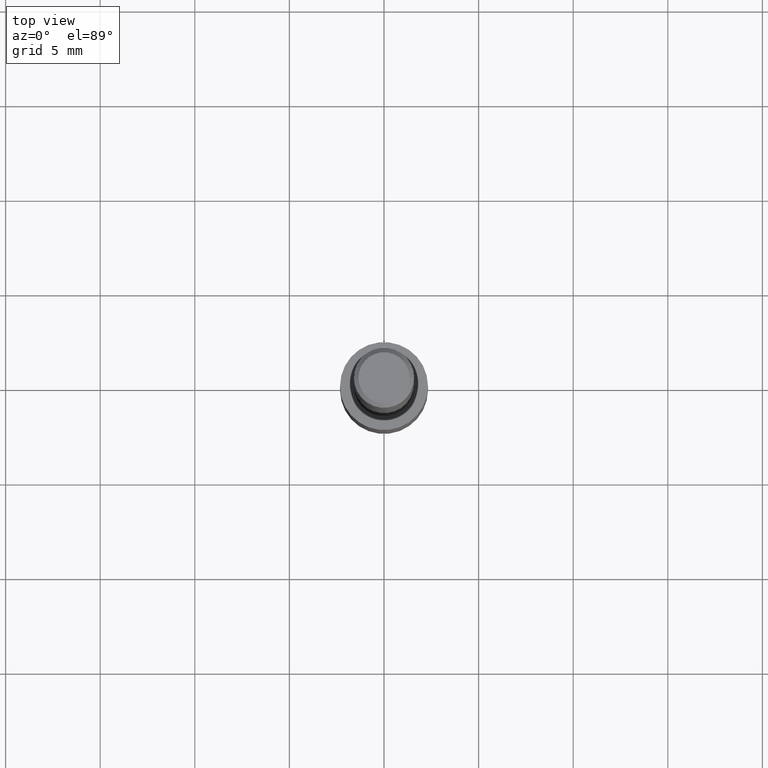
[diagram: clean part render]
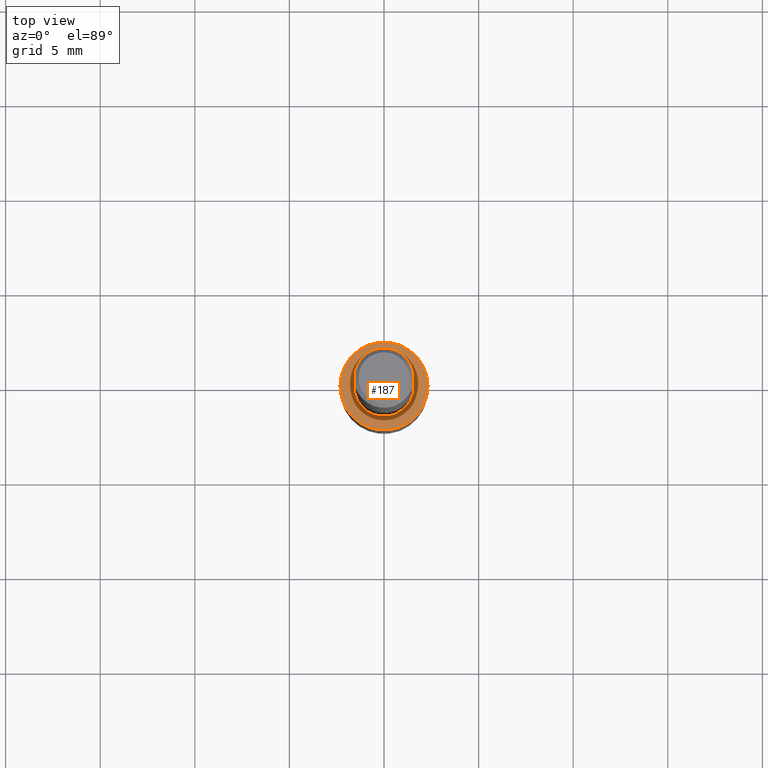
[diagram: same view with one face highlighted and labeled with its STEP entity id]
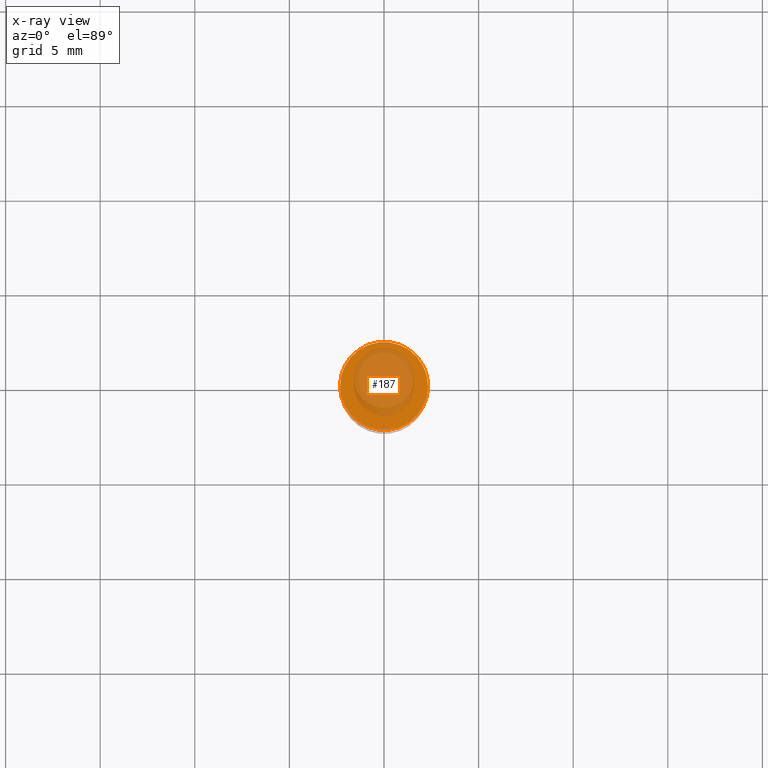
[diagram: x-ray of the same camera — body ghosted, the highlighted face saturated]
A machine part, top view. The second image highlights one B-rep face of the part: STEP entity #187.
The next image is the same camera in x-ray: the body ghosted, the highlighted face saturated — about 54% of this face is hidden behind the body in this view.
In plain terms, the highlighted planar face has unit normal (0, -0, -1).
Its self-contained STEP definition (entity closure, byte-faithful):
#5 = ORIENTED_EDGE ( 'NONE', *, *, #19, .T. ) ;
#13 = DIRECTION ( 'NONE',  ( 1.000000000000000000, -6.982962677686266711E-15, 0.000000000000000000 ) ) ;
#15 = DIRECTION ( 'NONE',  ( -2.445468806185136597E-29, 3.491481338843145583E-15, 1.000000000000000000 ) ) ;
#18 = DIRECTION ( 'NONE',  ( 1.000000000000000000, -6.982962677686266711E-15, 0.000000000000000000 ) ) ;
#19 = EDGE_CURVE ( 'NONE', #216, #152, #87, .T. ) ;
#30 = ORIENTED_EDGE ( 'NONE', *, *, #222, .T. ) ;
#48 = EDGE_LOOP ( 'NONE', ( #30, #5 ) ) ;
#62 = CARTESIAN_POINT ( 'NONE',  ( 2.445468806185136877E-29, -3.491481338843145977E-15, -1.000000000000000222 ) ) ;
#87 = CIRCLE ( 'NONE', #153, 0.09155000000000000637 ) ;
#92 = AXIS2_PLACEMENT_3D ( 'NONE', #218, #15, #13 ) ;
#93 = CARTESIAN_POINT ( 'NONE',  ( 3.487325309782606283E-29, -1.999483526901986298E-15, -1.000000000000000222 ) ) ;
#106 = CIRCLE ( 'NONE', #92, 0.09155000000000000637 ) ;
#141 = DIRECTION ( 'NONE',  ( -2.445468806185136597E-29, 3.491481338843145583E-15, 1.000000000000000000 ) ) ;
#152 = VERTEX_POINT ( 'NONE', #327 ) ;
#153 = AXIS2_PLACEMENT_3D ( 'NONE', #62, #141, #18 ) ;
#187 = ADVANCED_FACE ( 'NONE', ( #243 ), #305, .F. ) ;
#216 = VERTEX_POINT ( 'NONE', #329 ) ;
#218 = CARTESIAN_POINT ( 'NONE',  ( 2.445468806185136877E-29, -3.491481338843145977E-15, -1.000000000000000222 ) ) ;
#222 = EDGE_CURVE ( 'NONE', #152, #216, #106, .T. ) ;
#243 = FACE_OUTER_BOUND ( 'NONE', #48, .T. ) ;
#264 = AXIS2_PLACEMENT_3D ( 'NONE', #93, #274, #266 ) ;
#266 = DIRECTION ( 'NONE',  ( -1.000000000000000000, 6.982962677686265922E-15, -4.876176775795935793E-29 ) ) ;
#274 = DIRECTION ( 'NONE',  ( 2.438088387897960049E-29, -3.491481338843145188E-15, -1.000000000000000000 ) ) ;
#305 = PLANE ( 'NONE',  #264 ) ;
#327 = CARTESIAN_POINT ( 'NONE',  ( 0.09155000000000000637, -4.130771571985323461E-15, -1.000000000000000222 ) ) ;
#329 = CARTESIAN_POINT ( 'NONE',  ( -0.09155000000000000637, -3.639323316091087258E-15, -1.000000000000000222 ) ) ;